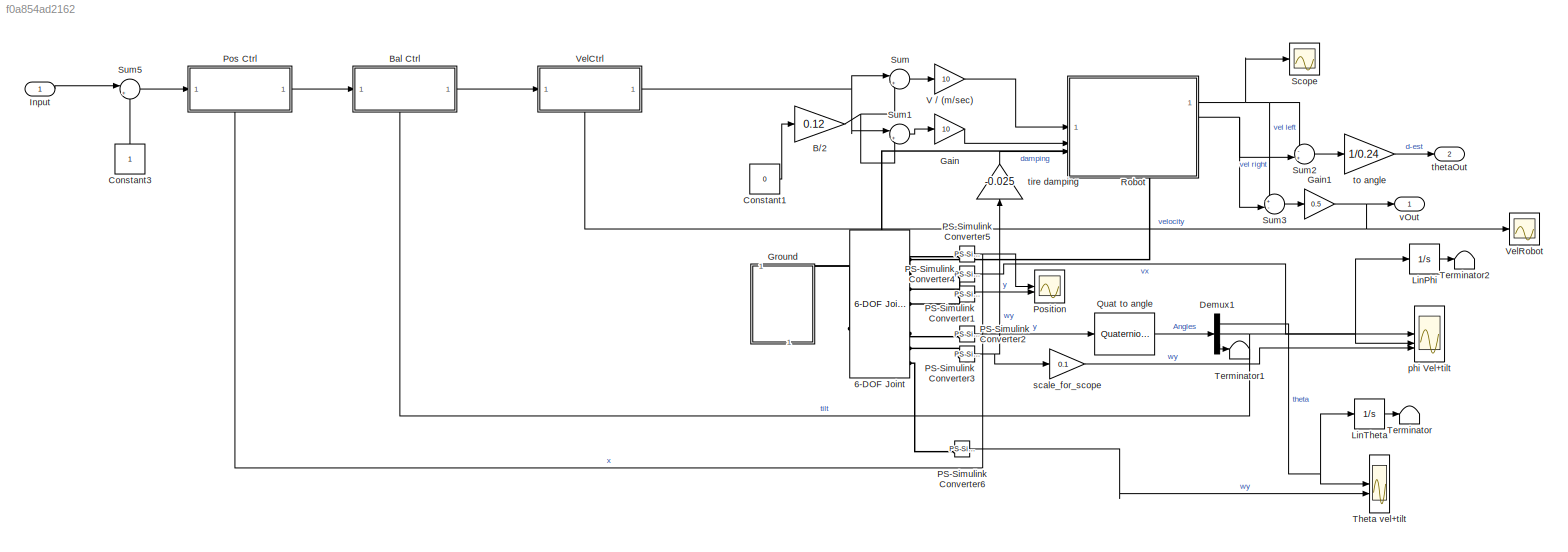
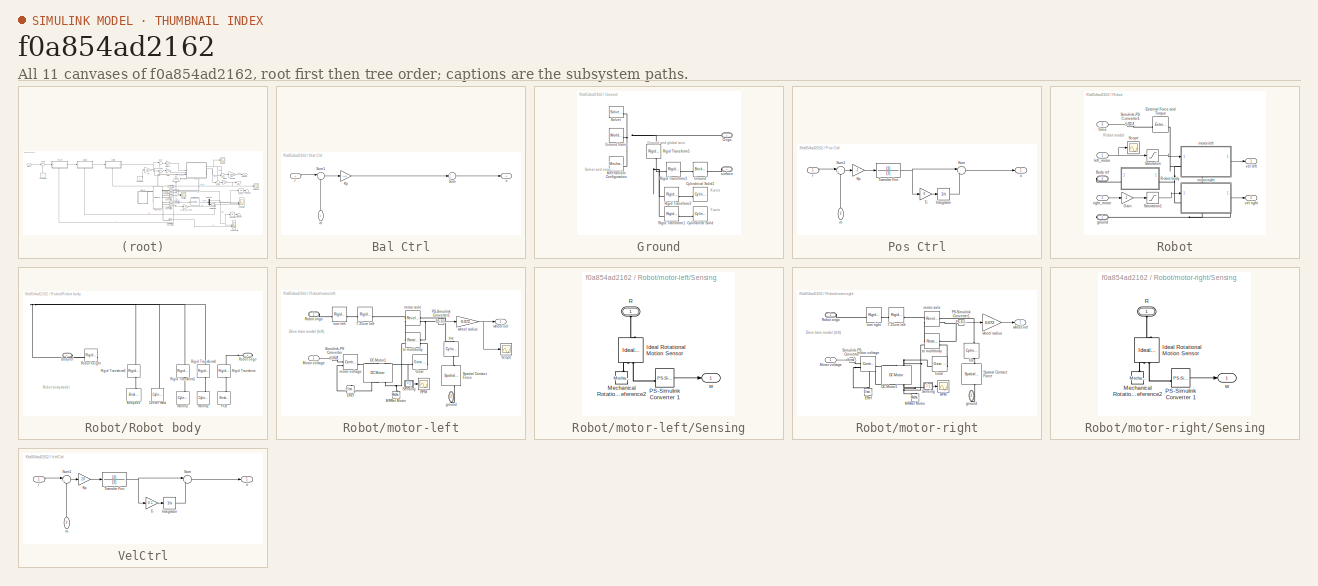
[diagram: thumbnail index - all 11 canvases of the model, root first then tree order]
MODEL slx_f0a854ad2162
KIND model
CONFIG AbsTol = 1e-3
CONFIG EnableMultiTasking = on
CONFIG FixedStep = auto
CONFIG MaxStep = auto
CONFIG MinStep = auto
CONFIG RelTol = 1e-3
CONFIG SampleTimeConstraint = Unconstrained
CONFIG SolverName = VariableStepAuto
CONFIG StartTime = 0.0
CONFIG StopTime = 10
BLOCK [Reference] 6-DOF Joint  REF=sm_lib/Joints/6-DOF Joint
  SourceBlock = sm_lib/Joints/6-DOF Joint
  SourceType = 6-DOF Joint
BLOCK [Gain] B//2
  Gain = 0.12
BLOCK [SubSystem] Bal Ctrl
  NameLocation = top
  PortSchema = {"entries":[{"content":{"sides":[{"content":{"connectorIds":["In1"]},"type":"ConnectorPlacement.EquallySpacedRectSide","uuid":"aa0841fe-a067-4812-ac37-c29326fa3993"},{"content":{"connectorIds":["Out1"],"side":"RIGHT"},"type":"ConnectorPlacement.EquallySpacedRectSide","uuid":"f356dd97-ff78-40a4-8871-b3d98525e6fe"},{"content":{"side":"TOP"},"type":"ConnectorPlacement.EquallySpacedRectSide","uuid":"7...<+371ch>  <repeated x3 — deduplicated; at blocks: Bal Ctrl, Pos Ctrl, VelCtrl>
BLOCK [Gain] Bal Ctrl/Kp
  Gain = -1.5
BLOCK [Sum] Bal Ctrl/Sum
  Inputs = +++
BLOCK [Sum] Bal Ctrl/Sum1
  Inputs = |+-
BLOCK [Inport] Bal Ctrl/m
  NameLocation = right
  Port = 2
BLOCK [Inport] Bal Ctrl/r
BLOCK [Outport] Bal Ctrl/u
BLOCK [Constant] Constant1
  Value = 0
BLOCK [Constant] Constant3
  NameLocation = right
BLOCK [Demux] Demux1
  Outputs = 3
BLOCK [Gain] Gain
  Gain = 10
BLOCK [Gain] Gain1
  Gain = 0.5
BLOCK [SubSystem] Ground
  PortSchema = {"entries":[{"content":{"sides":[{"content":{"connectorIds":["LConn1"]},"type":"ConnectorPlacement.EquallySpacedRectSide","uuid":"7eef4dea-7609-4788-a85a-c84ffa69f19a"},{"content":{"side":"RIGHT"},"type":"ConnectorPlacement.EquallySpacedRectSide","uuid":"e92c1246-1c8b-41a9-8b16-f2f858e0f641"},{"content":{"connectorIds":["LConn2"],"side":"TOP"},"type":"ConnectorPlacement.EquallySpacedRectSide","uui...<+353ch>
BLOCK [Reference] Ground/Cylindrical Solid  REF=sm_lib/Body Elements/Cylindrical Solid
  NameLocation = top
  SourceBlock = sm_lib/Body Elements/Cylindrical Solid
  SourceType = Cylindrical Solid
BLOCK [Reference] Ground/Cylindrical Solid1  REF=sm_lib/Body Elements/Cylindrical Solid
  NameLocation = top
  SourceBlock = sm_lib/Body Elements/Cylindrical Solid
  SourceType = Cylindrical Solid
BLOCK [Reference] Ground/Ground  REF=sm_lib/Body Elements/Brick Solid
  SourceBlock = sm_lib/Body Elements/Brick Solid
  SourceType = Brick Solid
BLOCK [Reference] Ground/Ground frame  REF=sm_lib/Frames and
Transforms/World Frame
  SourceBlock = sm_lib/Frames and\nTransforms/World Frame
  SourceType = World Frame
BLOCK [Reference] Ground/Mechanism Configuration  REF=sm_lib/Utilities/Mechanism
Configuration
  SourceBlock = sm_lib/Utilities/Mechanism\nConfiguration
  SourceType = Mechanism\nConfiguration
BLOCK [PMIOPort] Ground/Origo
  Port = 2
  Side = Left
BLOCK [Reference] Ground/Rigid Transform1  REF=sm_lib/Frames and
Transforms/Rigid
Transform
  SourceBlock = sm_lib/Frames and\nTransforms/Rigid\nTransform
  SourceType = Rigid\nTransform
BLOCK [Reference] Ground/Rigid Transform2  REF=sm_lib/Frames and
Transforms/Rigid
Transform
  SourceBlock = sm_lib/Frames and\nTransforms/Rigid\nTransform
  SourceType = Rigid\nTransform
BLOCK [Reference] Ground/Rigid Transform3  REF=sm_lib/Frames and
Transforms/Rigid
Transform
  SourceBlock = sm_lib/Frames and\nTransforms/Rigid\nTransform
  SourceType = Rigid\nTransform
BLOCK [Reference] Ground/Rigid Transform5  REF=sm_lib/Frames and
Transforms/Rigid
Transform
  NameLocation = left
  SourceBlock = sm_lib/Frames and\nTransforms/Rigid\nTransform
  SourceType = Rigid\nTransform
BLOCK [Reference] Ground/Solver  REF=nesl_utility/Solver
Configuration
  SourceBlock = nesl_utility/Solver\nConfiguration
  SourceType = Solver\nConfiguration
BLOCK [PMIOPort] Ground/surface
  NameLocation = top
  Side = Left
BLOCK [Inport] Input
BLOCK [Integrator] LinPhi
BLOCK [Integrator] LinTheta
BLOCK [Reference] PS-Simulink Converter1  REF=nesl_utility/PS-Simulink
Converter
  SourceBlock = nesl_utility/PS-Simulink\nConverter
  SourceType = PS-Simulink\nConverter
BLOCK [Reference] PS-Simulink Converter2  REF=nesl_utility/PS-Simulink
Converter
  SourceBlock = nesl_utility/PS-Simulink\nConverter
  SourceType = PS-Simulink\nConverter
BLOCK [Reference] PS-Simulink Converter3  REF=nesl_utility/PS-Simulink
Converter
  SourceBlock = nesl_utility/PS-Simulink\nConverter
  SourceType = PS-Simulink\nConverter
BLOCK [Reference] PS-Simulink Converter4  REF=nesl_utility/PS-Simulink
Converter
  SourceBlock = nesl_utility/PS-Simulink\nConverter
  SourceType = PS-Simulink\nConverter
BLOCK [Reference] PS-Simulink Converter5  REF=nesl_utility/PS-Simulink
Converter
  SourceBlock = nesl_utility/PS-Simulink\nConverter
  SourceType = PS-Simulink\nConverter
BLOCK [Reference] PS-Simulink Converter6  REF=nesl_utility/PS-Simulink
Converter
  SourceBlock = nesl_utility/PS-Simulink\nConverter
  SourceType = PS-Simulink\nConverter
BLOCK [SubSystem] Pos Ctrl
  NameLocation = top
BLOCK [Integrator] Pos Ctrl/Integrator
  LimitOutput = on
  LowerSaturationLimit = -8
  UpperSaturationLimit = 8
BLOCK [Gain] Pos Ctrl/Kp
  Gain = -1
BLOCK [Sum] Pos Ctrl/Sum
  Inputs = |++
BLOCK [Sum] Pos Ctrl/Sum1
  Inputs = |+-
BLOCK [Gain] Pos Ctrl/Ti
  Gain = 0
BLOCK [TransferFcn] Pos Ctrl/Transfer Fcn
  Denominator = [1]
BLOCK [Inport] Pos Ctrl/m
  NameLocation = right
  Port = 2
BLOCK [Inport] Pos Ctrl/r
BLOCK [Outport] Pos Ctrl/u
BLOCK [Scope] Position
  Floating = off
  NumInputPorts = 2
  ScopeSpecificationString = Simulink.scopes.TimeScopeBlockCfg('CurrentConfiguration', extmgr.ConfigurationSet(extmgr.Configuration('Core','General UI',true),extmgr.Configuration('Core','Source UI',true),extmgr.Configuration('Sources','WiredSimulink',true,'DataLoggingVariableName','ScopeData1'),extmgr.Configuration('Visuals','Time Domain',true,'SerializedDisplays',{struct('MinYLimReal','-0.01284','MaxYLimReal','0.11559','YLab...<+1480ch>
BLOCK [Reference] Quat to angle  REF=sharedtransform/Quaternions to Rotation Angles
  AttributesFormatString = Rotation Order: %<rotationOrder>
  LibrarySourceBlock = aerolibtransform2/Quaternions to Rotation Angles
  NameLocation = top
  SourceBlock = sharedtransform/Quaternions to Rotation Angles
  SourceType = Quat2Ang
BLOCK [SubSystem] Robot
  NameLocation = top
  PortSchema = {"entries":[{"content":{"sides":[{"content":{"connectorIds":["In1","In2","In3"]},"type":"ConnectorPlacement.EquallySpacedRectSide","uuid":"5a899b80-7bac-4a74-b0d1-ad24c86580e3"},{"content":{"connectorIds":["Out1","Out2"],"side":"RIGHT"},"type":"ConnectorPlacement.EquallySpacedRectSide","uuid":"60cad417-51c5-419f-810a-16084ccef033"},{"content":{"side":"TOP"},"type":"ConnectorPlacement.EquallySpaced...<+402ch>
BLOCK [PMIOPort] Robot/Body ref
  Port = 2
  Side = Right
BLOCK [Reference] Robot/External Force and Torque  REF=sm_lib/Forces and
Torques/External Force
and Torque
  SourceBlock = sm_lib/Forces and\nTorques/External Force\nand Torque
  SourceType = External Force\nand Torque
BLOCK [Gain] Robot/Gain
  Gain = -1
BLOCK [SubSystem] Robot/Robot body
  NameLocation = top
BLOCK [PMIOPort] Robot/Robot body/Body ref
  Side = Left
BLOCK [Reference] Robot/Robot body/Body-box  REF=sm_lib/Body Elements/Brick Solid
  SourceBlock = sm_lib/Body Elements/Brick Solid
  SourceType = Brick Solid
BLOCK [Reference] Robot/Robot body/Center mast   REF=sm_lib/Body Elements/Cylindrical Solid
  SourceBlock = sm_lib/Body Elements/Cylindrical Solid
  SourceType = Cylindrical Solid
BLOCK [Reference] Robot/Robot body/PCB  REF=sm_lib/Body Elements/Brick Solid
  NameLocation = right
  SourceBlock = sm_lib/Body Elements/Brick Solid
  SourceType = Brick Solid
BLOCK [Reference] Robot/Robot body/Rigid Transform  REF=sm_lib/Frames and
Transforms/Rigid
Transform
  NameLocation = left
  SourceBlock = sm_lib/Frames and\nTransforms/Rigid\nTransform
  SourceType = Rigid\nTransform
BLOCK [Reference] Robot/Robot body/Rigid Transform1  REF=sm_lib/Frames and
Transforms/Rigid
Transform
  NameLocation = left
  SourceBlock = sm_lib/Frames and\nTransforms/Rigid\nTransform
  SourceType = Rigid\nTransform
BLOCK [Reference] Robot/Robot body/Rigid Transform2  REF=sm_lib/Frames and
Transforms/Rigid
Transform
  NameLocation = left
  SourceBlock = sm_lib/Frames and\nTransforms/Rigid\nTransform
  SourceType = Rigid\nTransform
BLOCK [Reference] Robot/Robot body/Rigid Transform4  REF=sm_lib/Frames and
Transforms/Rigid
Transform
  NameLocation = left
  SourceBlock = sm_lib/Frames and\nTransforms/Rigid\nTransform
  SourceType = Rigid\nTransform
BLOCK [Reference] Robot/Robot body/Robot height  REF=sm_lib/Frames and
Transforms/Rigid
Transform
  SourceBlock = sm_lib/Frames and\nTransforms/Rigid\nTransform
  SourceType = Rigid\nTransform
BLOCK [PMIOPort] Robot/Robot body/Robot origo
  Port = 2
  Side = Right
BLOCK [Reference] Robot/Robot body/motors1  REF=sm_lib/Body Elements/Cylindrical Solid
  SourceBlock = sm_lib/Body Elements/Cylindrical Solid
  SourceType = Cylindrical Solid
BLOCK [Reference] Robot/Robot body/motors2  REF=sm_lib/Body Elements/Cylindrical Solid
  SourceBlock = sm_lib/Body Elements/Cylindrical Solid
  SourceType = Cylindrical Solid
BLOCK [Saturate] Robot/Saturation
  LowerLimit = -100
  UpperLimit = 100
BLOCK [Saturate] Robot/Saturation1
  LowerLimit = -100
  UpperLimit = 100
BLOCK [Scope] Robot/Scope
  Floating = off
  NumInputPorts = 1
  ScopeSpecificationString = Simulink.scopes.TimeScopeBlockCfg('CurrentConfiguration', extmgr.ConfigurationSet(extmgr.Configuration('Core','General UI',true),extmgr.Configuration('Core','Source UI',true),extmgr.Configuration('Sources','WiredSimulink',true,'DataLoggingVariableName','ScopeData1'),extmgr.Configuration('Visuals','Time Domain',true,'SerializedDisplays',{struct('MinYLimReal','-909.54626','MaxYLimReal','-421.20313',...<+1557ch>
BLOCK [Reference] Robot/Simulink-PS Converter1  REF=nesl_utility/Simulink-PS
Converter
  SourceBlock = nesl_utility/Simulink-PS\nConverter
  SourceType = Simulink-PS\nConverter
BLOCK [Inport] Robot/force
  Port = 3
BLOCK [PMIOPort] Robot/ground
  Side = Right
BLOCK [Inport] Robot/left_motor
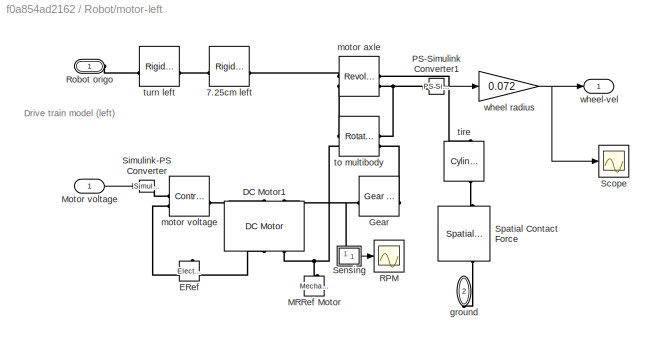
BLOCK [SubSystem] Robot/motor-left
  NameLocation = top
  PortSchema = {"entries":[{"content":{"sides":[{"content":{"connectorIds":["In1","LConn1"]},"type":"ConnectorPlacement.EquallySpacedRectSide","uuid":"bc06ab0c-ec37-423f-ad89-e6de7599ff9c"},{"content":{"connectorIds":["Out1"],"side":"RIGHT"},"type":"ConnectorPlacement.EquallySpacedRectSide","uuid":"2c5e0562-173d-41fd-949f-bc39ba05f0ab"},{"content":{"side":"TOP"},"type":"ConnectorPlacement.EquallySpacedRectSide",...<+383ch>
BLOCK [Reference] Robot/motor-left/7.25cm left  REF=sm_lib/Frames and
Transforms/Rigid
Transform
  SourceBlock = sm_lib/Frames and\nTransforms/Rigid\nTransform
  SourceType = Rigid\nTransform
BLOCK [Reference] Robot/motor-left/DC Motor1  REF=ee_lib/Electromechanical/Brushed Motors/DC Motor
  NameLocation = right
  SourceBlock = ee_lib/Electromechanical/Brushed Motors/DC Motor
  SourceType = DC Motor
BLOCK [Reference] Robot/motor-left/ERef  REF=fl_lib/Electrical/Electrical Elements/Electrical Reference
  NameLocation = right
  SourceBlock = fl_lib/Electrical/Electrical Elements/Electrical Reference
  SourceType = Electrical Reference
BLOCK [Reference] Robot/motor-left/Gear  REF=fl_lib/Mechanical/Mechanisms/Gear Box
  SourceBlock = fl_lib/Mechanical/Mechanisms/Gear Box
  SourceType = Gear Box
BLOCK [Reference] Robot/motor-left/MRRef Motor  REF=fl_lib/Mechanical/Rotational Elements/Mechanical
Rotational Reference
  NameLocation = left
  SourceBlock = fl_lib/Mechanical/Rotational Elements/Mechanical\nRotational Reference
  SourceType = Mechanical\nRotational Reference
BLOCK [Inport] Robot/motor-left/Motor voltage
BLOCK [Reference] Robot/motor-left/PS-Simulink Converter1  REF=nesl_utility/PS-Simulink
Converter
  SourceBlock = nesl_utility/PS-Simulink\nConverter
  SourceType = PS-Simulink\nConverter
BLOCK [Scope] Robot/motor-left/RPM
  Floating = off
  NumInputPorts = 1
  ScopeSpecificationString = Simulink.scopes.TimeScopeBlockCfg('CurrentConfiguration', extmgr.ConfigurationSet(extmgr.Configuration('Core','General UI',true),extmgr.Configuration('Core','Source UI',true),extmgr.Configuration('Sources','WiredSimulink',true,'DataLoggingSaveFormat','StructureWithTime','DataLoggingLimitDataPoints',true,'DataLoggingDecimation','1','DataLoggingVariableName','ScopeData1'),extmgr.Configuration('Visua...<+1766ch>
BLOCK [PMIOPort] Robot/motor-left/Robot origo
  Side = Left
BLOCK [Scope] Robot/motor-left/Scope
  Floating = off
  NumInputPorts = 1
  ScopeSpecificationString = Simulink.scopes.TimeScopeBlockCfg('CurrentConfiguration', extmgr.ConfigurationSet(extmgr.Configuration('Core','General UI',true),extmgr.Configuration('Core','Source UI',true),extmgr.Configuration('Sources','WiredSimulink',true,'DataLoggingVariableName','ScopeData5'),extmgr.Configuration('Visuals','Time Domain',true,'SerializedDisplays',{struct('MinYLimReal','0.26357','MaxYLimReal','0.30381','YLabe...<+1507ch>
BLOCK [SubSystem] Robot/motor-left/Sensing
BLOCK [Reference] Robot/motor-left/Sensing/Ideal Rotational Motion Sensor  REF=fl_lib/Mechanical/Mechanical Sensors/Ideal Rotational
Motion Sensor
  NameLocation = right
  SourceBlock = fl_lib/Mechanical/Mechanical Sensors/Ideal Rotational\nMotion Sensor
  SourceType = Ideal Rotational\nMotion Sensor
BLOCK [Reference] Robot/motor-left/Sensing/Mechanical Rotational Reference2  REF=fl_lib/Mechanical/Rotational Elements/Mechanical
Rotational Reference
  NameLocation = left
  SourceBlock = fl_lib/Mechanical/Rotational Elements/Mechanical\nRotational Reference
  SourceType = Mechanical\nRotational Reference
BLOCK [Reference] Robot/motor-left/Sensing/PS-Simulink Converter 1  REF=nesl_utility/PS-Simulink
Converter
  SourceBlock = nesl_utility/PS-Simulink\nConverter
  SourceType = PS-Simulink\nConverter
BLOCK [PMIOPort] Robot/motor-left/Sensing/R
  NameLocation = right
  Side = Left
BLOCK [Outport] Robot/motor-left/Sensing/w
  VectorParamsAs1DForOutWhenUnconnected = off
BLOCK [Reference] Robot/motor-left/Simulink-PS Converter  REF=nesl_utility/Simulink-PS
Converter
  SourceBlock = nesl_utility/Simulink-PS\nConverter
  SourceType = Simulink-PS\nConverter
BLOCK [Reference] Robot/motor-left/Spatial Contact Force  REF=sm_lib/Forces and
Torques/Spatial
Contact Force
  NameLocation = right
  SourceBlock = sm_lib/Forces and\nTorques/Spatial\nContact Force
  SourceType = Spatial\nContact Force
BLOCK [PMIOPort] Robot/motor-left/ground
  NameLocation = left
  Port = 2
  Side = Right
BLOCK [Reference] Robot/motor-left/motor axle  REF=sm_lib/Joints/Revolute Joint
  NameLocation = top
  SourceBlock = sm_lib/Joints/Revolute Joint
  SourceType = Revolute Joint
BLOCK [Reference] Robot/motor-left/motor voltage  REF=fl_lib/Electrical/Electrical Sources/Controlled Voltage
Source
  NameLocation = top
  SourceBlock = fl_lib/Electrical/Electrical Sources/Controlled Voltage\nSource
  SourceType = Controlled Voltage\nSource
BLOCK [Reference] Robot/motor-left/tire  REF=sm_lib/Body Elements/Cylindrical Solid
  NameLocation = left
  SourceBlock = sm_lib/Body Elements/Cylindrical Solid
  SourceType = Cylindrical Solid
BLOCK [Reference] Robot/motor-left/to multibody  REF=fl_lib/Mechanical/Multibody Interfaces/Rotational Multibody
Interface
  SourceBlock = fl_lib/Mechanical/Multibody Interfaces/Rotational Multibody\nInterface
  SourceType = Rotational Multibody\nInterface
BLOCK [Reference] Robot/motor-left/turn left  REF=sm_lib/Frames and
Transforms/Rigid
Transform
  SourceBlock = sm_lib/Frames and\nTransforms/Rigid\nTransform
  SourceType = Rigid\nTransform
BLOCK [Gain] Robot/motor-left/wheel radius
  Gain = 0.072
  NameLocation = top
BLOCK [Outport] Robot/motor-left/wheel-vel
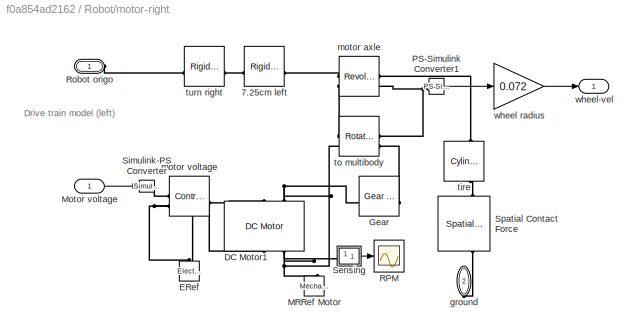
BLOCK [SubSystem] Robot/motor-right
  NameLocation = top
  PortSchema = {"entries":[{"content":{"sides":[{"content":{"connectorIds":["In1","LConn1"]},"type":"ConnectorPlacement.EquallySpacedRectSide","uuid":"bc06ab0c-ec37-423f-ad89-e6de7599ff9c"},{"content":{"connectorIds":["Out1"],"side":"RIGHT"},"type":"ConnectorPlacement.EquallySpacedRectSide","uuid":"2c5e0562-173d-41fd-949f-bc39ba05f0ab"},{"content":{"connectorIds":[],"side":"TOP"},"type":"ConnectorPlacement.Equal...<+401ch>
BLOCK [Reference] Robot/motor-right/7.25cm left  REF=sm_lib/Frames and
Transforms/Rigid
Transform
  SourceBlock = sm_lib/Frames and\nTransforms/Rigid\nTransform
  SourceType = Rigid\nTransform
BLOCK [Reference] Robot/motor-right/DC Motor1  REF=ee_lib/Electromechanical/Brushed Motors/DC Motor
  NameLocation = right
  SourceBlock = ee_lib/Electromechanical/Brushed Motors/DC Motor
  SourceType = DC Motor
BLOCK [Reference] Robot/motor-right/ERef  REF=fl_lib/Electrical/Electrical Elements/Electrical Reference
  NameLocation = right
  SourceBlock = fl_lib/Electrical/Electrical Elements/Electrical Reference
  SourceType = Electrical Reference
BLOCK [Reference] Robot/motor-right/Gear  REF=fl_lib/Mechanical/Mechanisms/Gear Box
  SourceBlock = fl_lib/Mechanical/Mechanisms/Gear Box
  SourceType = Gear Box
BLOCK [Reference] Robot/motor-right/MRRef Motor  REF=fl_lib/Mechanical/Rotational Elements/Mechanical
Rotational Reference
  NameLocation = left
  SourceBlock = fl_lib/Mechanical/Rotational Elements/Mechanical\nRotational Reference
  SourceType = Mechanical\nRotational Reference
BLOCK [Inport] Robot/motor-right/Motor voltage
BLOCK [Reference] Robot/motor-right/PS-Simulink Converter1  REF=nesl_utility/PS-Simulink
Converter
  SourceBlock = nesl_utility/PS-Simulink\nConverter
  SourceType = PS-Simulink\nConverter
BLOCK [Scope] Robot/motor-right/RPM
  Floating = off
  NumInputPorts = 1
  ScopeSpecificationString = Simulink.scopes.TimeScopeBlockCfg('CurrentConfiguration', extmgr.ConfigurationSet(extmgr.Configuration('Core','General UI',true),extmgr.Configuration('Core','Source UI',true),extmgr.Configuration('Sources','WiredSimulink',true,'DataLoggingSaveFormat','StructureWithTime','DataLoggingLimitDataPoints',true,'DataLoggingDecimation','1','DataLoggingVariableName','ScopeData1'),extmgr.Configuration('Visua...<+1807ch>
BLOCK [PMIOPort] Robot/motor-right/Robot origo
  Side = Left
BLOCK [SubSystem] Robot/motor-right/Sensing
BLOCK [Reference] Robot/motor-right/Sensing/Ideal Rotational Motion Sensor  REF=fl_lib/Mechanical/Mechanical Sensors/Ideal Rotational
Motion Sensor
  NameLocation = right
  SourceBlock = fl_lib/Mechanical/Mechanical Sensors/Ideal Rotational\nMotion Sensor
  SourceType = Ideal Rotational\nMotion Sensor
BLOCK [Reference] Robot/motor-right/Sensing/Mechanical Rotational Reference2  REF=fl_lib/Mechanical/Rotational Elements/Mechanical
Rotational Reference
  NameLocation = left
  SourceBlock = fl_lib/Mechanical/Rotational Elements/Mechanical\nRotational Reference
  SourceType = Mechanical\nRotational Reference
BLOCK [Reference] Robot/motor-right/Sensing/PS-Simulink Converter 1  REF=nesl_utility/PS-Simulink
Converter
  SourceBlock = nesl_utility/PS-Simulink\nConverter
  SourceType = PS-Simulink\nConverter
BLOCK [PMIOPort] Robot/motor-right/Sensing/R
  NameLocation = right
  Side = Left
BLOCK [Outport] Robot/motor-right/Sensing/w
  VectorParamsAs1DForOutWhenUnconnected = off
BLOCK [Reference] Robot/motor-right/Simulink-PS Converter  REF=nesl_utility/Simulink-PS
Converter
  SourceBlock = nesl_utility/Simulink-PS\nConverter
  SourceType = Simulink-PS\nConverter
BLOCK [Reference] Robot/motor-right/Spatial Contact Force  REF=sm_lib/Forces and
Torques/Spatial
Contact Force
  NameLocation = right
  SourceBlock = sm_lib/Forces and\nTorques/Spatial\nContact Force
  SourceType = Spatial\nContact Force
BLOCK [PMIOPort] Robot/motor-right/ground
  NameLocation = left
  Port = 2
  Side = Right
BLOCK [Reference] Robot/motor-right/motor axle  REF=sm_lib/Joints/Revolute Joint
  NameLocation = top
  SourceBlock = sm_lib/Joints/Revolute Joint
  SourceType = Revolute Joint
BLOCK [Reference] Robot/motor-right/motor voltage  REF=fl_lib/Electrical/Electrical Sources/Controlled Voltage
Source
  NameLocation = top
  SourceBlock = fl_lib/Electrical/Electrical Sources/Controlled Voltage\nSource
  SourceType = Controlled Voltage\nSource
BLOCK [Reference] Robot/motor-right/tire  REF=sm_lib/Body Elements/Cylindrical Solid
  NameLocation = left
  SourceBlock = sm_lib/Body Elements/Cylindrical Solid
  SourceType = Cylindrical Solid
BLOCK [Reference] Robot/motor-right/to multibody  REF=fl_lib/Mechanical/Multibody Interfaces/Rotational Multibody
Interface
  SourceBlock = fl_lib/Mechanical/Multibody Interfaces/Rotational Multibody\nInterface
  SourceType = Rotational Multibody\nInterface
BLOCK [Reference] Robot/motor-right/turn right  REF=sm_lib/Frames and
Transforms/Rigid
Transform
  SourceBlock = sm_lib/Frames and\nTransforms/Rigid\nTransform
  SourceType = Rigid\nTransform
BLOCK [Gain] Robot/motor-right/wheel radius
  Gain = 0.072
  NameLocation = top
BLOCK [Outport] Robot/motor-right/wheel-vel
BLOCK [Inport] Robot/right_motor
  Port = 2
BLOCK [Outport] Robot/vel left
BLOCK [Outport] Robot/vel right
  Port = 2
BLOCK [Scope] Scope
  Floating = off
  NumInputPorts = 1
  ScopeSpecificationString = Simulink.scopes.TimeScopeBlockCfg('CurrentConfiguration', extmgr.ConfigurationSet(extmgr.Configuration('Core','General UI',true),extmgr.Configuration('Core','Source UI',true),extmgr.Configuration('Sources','WiredSimulink',true,'DataLoggingVariableName','ScopeData2'),extmgr.Configuration('Visuals','Time Domain',true,'SerializedDisplays',{struct('MinYLimReal','-0.10997','MaxYLimReal','0.98969','YLab...<+1500ch>
BLOCK [Sum] Sum
  Inputs = |+-
BLOCK [Sum] Sum1
  Inputs = |++
BLOCK [Sum] Sum2
  Inputs = -+|
BLOCK [Sum] Sum3
  Inputs = +-|
BLOCK [Sum] Sum5
  Inputs = |++
BLOCK [Terminator] Terminator
BLOCK [Terminator] Terminator1
BLOCK [Terminator] Terminator2
BLOCK [Scope] Theta vel+tilt
  Floating = off
  NumInputPorts = 2
  ScopeSpecificationString = Simulink.scopes.TimeScopeBlockCfg('CurrentConfiguration', extmgr.ConfigurationSet(extmgr.Configuration('Core','General UI',true),extmgr.Configuration('Core','Source UI',true),extmgr.Configuration('Sources','WiredSimulink',true,'DataLoggingVariableName','ScopeData1'),extmgr.Configuration('Visuals','Time Domain',true,'SerializedDisplays',{struct('MinYLimReal','-0.09639','MaxYLimReal','0.56249','YLab...<+1512ch>
BLOCK [Gain] V // (m//sec)
  Gain = 10
BLOCK [SubSystem] VelCtrl
  NameLocation = top
BLOCK [Integrator] VelCtrl/Integrator
  LimitOutput = on
  LowerSaturationLimit = -8
  UpperSaturationLimit = 8
BLOCK [Gain] VelCtrl/Kp
  Gain = 20
BLOCK [Sum] VelCtrl/Sum
  Inputs = |++
BLOCK [Sum] VelCtrl/Sum1
  Inputs = |+-
BLOCK [Gain] VelCtrl/Ti
  Gain = 0.1
BLOCK [TransferFcn] VelCtrl/Transfer Fcn
  Denominator = [1]
BLOCK [Inport] VelCtrl/m
  NameLocation = right
  Port = 2
BLOCK [Inport] VelCtrl/r
BLOCK [Outport] VelCtrl/u
BLOCK [Scope] VelRobot
  Floating = off
  NumInputPorts = 1
  ScopeSpecificationString = Simulink.scopes.TimeScopeBlockCfg('CurrentConfiguration', extmgr.ConfigurationSet(extmgr.Configuration('Core','General UI',true),extmgr.Configuration('Core','Source UI',true),extmgr.Configuration('Sources','WiredSimulink',true,'DataLoggingVariableName','ScopeData1'),extmgr.Configuration('Visuals','Time Domain',true,'SerializedDisplays',{struct('MinYLimReal','-0.10993','MaxYLimReal','0.98937','YLab...<+1529ch>
BLOCK [Scope] phi Vel+tilt
  Floating = off
  NumInputPorts = 3
  ScopeSpecificationString = Simulink.scopes.TimeScopeBlockCfg('CurrentConfiguration', extmgr.ConfigurationSet(extmgr.Configuration('Core','General UI',true),extmgr.Configuration('Core','Source UI',true),extmgr.Configuration('Sources','WiredSimulink',true,'DataLoggingVariableName','ScopeData2'),extmgr.Configuration('Visuals','Time Domain',true,'SerializedDisplays',{struct('MinYLimReal','-0.14595','MaxYLimReal','0.13148','YLab...<+1531ch>
BLOCK [Gain] scale_for_scope
  Gain = 0.1
BLOCK [Outport] thetaOut
  Port = 2
BLOCK [Gain] tire damping
  Gain = -0.025
  NameLocation = left
BLOCK [Gain] to angle
  Gain = 1/0.24
  NameLocation = top
BLOCK [Outport] vOut
ANNOTATION Ground: Ground and global axis
ANNOTATION Ground: Solver and origo
ANNOTATION Ground: X-axis
ANNOTATION Ground: Y-axis
ANNOTATION Robot: Robot model
ANNOTATION Robot/Robot body: Robot body model
ANNOTATION Robot/motor-left: Drive train model (left)
ANNOTATION Robot/motor-right: Drive train model (left)
NET B//2:1 -> Sum1:2, Sum:2
LINE Bal Ctrl/Kp:1 -> Bal Ctrl/Sum:2
LINE Bal Ctrl/Sum1:1 -> Bal Ctrl/Kp:1
LINE Bal Ctrl/Sum:1 -> Bal Ctrl/u:1
LINE Bal Ctrl/m:1 -> Bal Ctrl/Sum1:2
LINE Bal Ctrl/r:1 -> Bal Ctrl/Sum1:1
LINE Bal Ctrl:1 -> VelCtrl:1
LINE Constant1:1 -> B//2:1
LINE Constant3:1 -> Sum5:2
NET Demux1:1 -> LinTheta:1, Theta vel+tilt:1
NET Demux1:2 -> Bal Ctrl:2, LinPhi:1, phi Vel+tilt:2
LINE Demux1:3 -> Terminator1:1
NET Gain1:1 -> VelCtrl:2, VelRobot:1, vOut:1
LINE Gain:1 -> Robot:2
LINE Input:1 -> Sum5:1
LINE LinPhi:1 -> Terminator2:1
LINE LinTheta:1 -> Terminator:1
LINE PS-Simulink Converter1:1 -> Position:2
LINE PS-Simulink Converter2:1 -> Quat to angle:1
NET PS-Simulink Converter3:1 -> scale_for_scope:1, tire damping:1
LINE PS-Simulink Converter4:1 -> phi Vel+tilt:1
NET PS-Simulink Converter5:1 -> Pos Ctrl:2, Position:1
LINE PS-Simulink Converter6:1 -> Theta vel+tilt:2
LINE Pos Ctrl/Integrator:1 -> Pos Ctrl/Sum:2
LINE Pos Ctrl/Kp:1 -> Pos Ctrl/Transfer Fcn:1
LINE Pos Ctrl/Sum1:1 -> Pos Ctrl/Kp:1
LINE Pos Ctrl/Sum:1 -> Pos Ctrl/u:1
LINE Pos Ctrl/Ti:1 -> Pos Ctrl/Integrator:1
NET Pos Ctrl/Transfer Fcn:1 -> Pos Ctrl/Sum:1, Pos Ctrl/Ti:1
LINE Pos Ctrl/m:1 -> Pos Ctrl/Sum1:2
LINE Pos Ctrl/r:1 -> Pos Ctrl/Sum1:1
LINE Pos Ctrl:1 -> Bal Ctrl:1
LINE Quat to angle:1 -> Demux1:1
LINE Robot/Gain:1 -> Robot/Saturation1:1
LINE Robot/Saturation1:1 -> Robot/motor-right:1
LINE Robot/Saturation:1 -> Robot/motor-left:1
LINE Robot/force:1 -> Robot/Simulink-PS Converter1:1
NET Robot/left_motor:1 -> Robot/Saturation:1, Robot/Scope:1
LINE Robot/motor-left/Motor voltage:1 -> Robot/motor-left/Simulink-PS Converter:1
LINE Robot/motor-left/PS-Simulink Converter1:1 -> Robot/motor-left/wheel radius:1
LINE Robot/motor-left/Sensing/PS-Simulink Converter 1:1 -> Robot/motor-left/Sensing/w:1
LINE Robot/motor-left/Sensing:1 -> Robot/motor-left/RPM:1
NET Robot/motor-left/wheel radius:1 -> Robot/motor-left/Scope:1, Robot/motor-left/wheel-vel:1
LINE Robot/motor-left:1 -> Robot/vel left:1
LINE Robot/motor-right/Motor voltage:1 -> Robot/motor-right/Simulink-PS Converter:1
LINE Robot/motor-right/PS-Simulink Converter1:1 -> Robot/motor-right/wheel radius:1
LINE Robot/motor-right/Sensing/PS-Simulink Converter 1:1 -> Robot/motor-right/Sensing/w:1
LINE Robot/motor-right/Sensing:1 -> Robot/motor-right/RPM:1
LINE Robot/motor-right/wheel radius:1 -> Robot/motor-right/wheel-vel:1
LINE Robot/motor-right:1 -> Robot/vel right:1
LINE Robot/right_motor:1 -> Robot/Gain:1
NET Robot:1 -> Scope:1, Sum2:1, Sum3:1
NET Robot:2 -> Sum2:2, Sum3:2
LINE Sum1:1 -> Gain:1
LINE Sum2:1 -> to angle:1
LINE Sum3:1 -> Gain1:1
LINE Sum5:1 -> Pos Ctrl:1
LINE Sum:1 -> V // (m//sec):1
LINE V // (m//sec):1 -> Robot:1
LINE VelCtrl/Integrator:1 -> VelCtrl/Sum:2
LINE VelCtrl/Kp:1 -> VelCtrl/Transfer Fcn:1
LINE VelCtrl/Sum1:1 -> VelCtrl/Kp:1
LINE VelCtrl/Sum:1 -> VelCtrl/u:1
LINE VelCtrl/Ti:1 -> VelCtrl/Integrator:1
NET VelCtrl/Transfer Fcn:1 -> VelCtrl/Sum:1, VelCtrl/Ti:1
LINE VelCtrl/m:1 -> VelCtrl/Sum1:2
LINE VelCtrl/r:1 -> VelCtrl/Sum1:1
NET VelCtrl:1 -> Sum1:1, Sum:1
LINE scale_for_scope:1 -> phi Vel+tilt:3
LINE tire damping:1 -> Robot:3
LINE to angle:1 -> thetaOut:1
PLINE 6-DOF Joint:LConn1 -- Ground:LConn2
PLINE 6-DOF Joint:RConn1 -- Robot:RConn2
PLINE 6-DOF Joint:RConn2 -- PS-Simulink Converter5:LConn1
PLINE 6-DOF Joint:RConn3 -- PS-Simulink Converter4:LConn1
PLINE 6-DOF Joint:RConn4 -- PS-Simulink Converter1:LConn1
PLINE 6-DOF Joint:RConn6 -- PS-Simulink Converter2:LConn1
PLINE 6-DOF Joint:RConn7 -- PS-Simulink Converter3:LConn1
PLINE 6-DOF Joint:RConn8 -- PS-Simulink Converter6:LConn1
PLINE Ground/Cylindrical Solid1:RConn1 -- Ground/Rigid Transform2:RConn1
PLINE Ground/Cylindrical Solid:RConn1 -- Ground/Rigid Transform1:RConn1
PNET net1: Ground/Ground frame:RConn1 -- Ground/Mechanism Configuration:RConn1 -- Ground/Origo:RConn1 -- Ground/Rigid Transform5:LConn1 -- Ground/Solver:RConn1
PLINE Ground/Ground:LConn1 -- Ground/surface:RConn1
PLINE Ground/Ground:RConn1 -- Ground/Rigid Transform3:RConn1
PNET net2: Ground/Rigid Transform1:LConn1 -- Ground/Rigid Transform2:LConn1 -- Ground/Rigid Transform3:LConn1 -- Ground/Rigid Transform5:RConn1
PLINE Ground:LConn1 -- Robot:RConn1
PLINE Robot/Body ref:RConn1 -- Robot/Robot body:LConn1
PLINE Robot/External Force and Torque:LConn1 -- Robot/Simulink-PS Converter1:RConn1
PNET net3: Robot/External Force and Torque:RConn1 -- Robot/Robot body:RConn1 -- Robot/motor-left:LConn1 -- Robot/motor-right:LConn1
PLINE Robot/Robot body/Body ref:RConn1 -- Robot/Robot body/Robot height:LConn1
PLINE Robot/Robot body/Body-box:RConn1 -- Robot/Robot body/Rigid Transform2:RConn1
PNET net4: Robot/Robot body/Center mast :RConn1 -- Robot/Robot body/Rigid Transform1:LConn1 -- Robot/Robot body/Rigid Transform2:LConn1 -- Robot/Robot body/Rigid Transform4:LConn1 -- Robot/Robot body/Rigid Transform:LConn1 -- Robot/Robot body/Robot height:RConn1 -- Robot/Robot body/Robot origo:RConn1
PLINE Robot/Robot body/PCB:RConn1 -- Robot/Robot body/Rigid Transform:RConn1
PLINE Robot/Robot body/Rigid Transform1:RConn1 -- Robot/Robot body/motors1:RConn1
PLINE Robot/Robot body/Rigid Transform4:RConn1 -- Robot/Robot body/motors2:RConn1
PNET net5: Robot/ground:RConn1 -- Robot/motor-left:RConn1 -- Robot/motor-right:RConn1
PLINE Robot/motor-left/7.25cm left:LConn1 -- Robot/motor-left/turn left:RConn1
PLINE Robot/motor-left/7.25cm left:RConn1 -- Robot/motor-left/motor axle:LConn1
PLINE Robot/motor-left/DC Motor1:LConn1 -- Robot/motor-left/motor voltage:LConn1
PNET net6: Robot/motor-left/DC Motor1:LConn2 -- Robot/motor-left/Gear:LConn1 -- Robot/motor-left/Sensing:LConn1
PNET net7: Robot/motor-left/DC Motor1:RConn1 -- Robot/motor-left/ERef:LConn1 -- Robot/motor-left/motor voltage:RConn2
PNET net8: Robot/motor-left/DC Motor1:RConn2 -- Robot/motor-left/MRRef Motor:LConn1 -- Robot/motor-left/to multibody:LConn2
PLINE Robot/motor-left/Gear:RConn1 -- Robot/motor-left/to multibody:RConn2
PNET net9: Robot/motor-left/PS-Simulink Converter1:LConn1 -- Robot/motor-left/motor axle:RConn2 -- Robot/motor-left/to multibody:RConn1
PLINE Robot/motor-left/Robot origo:RConn1 -- Robot/motor-left/turn left:LConn1
PLINE Robot/motor-left/Sensing/Ideal Rotational Motion Sensor:LConn1 -- Robot/motor-left/Sensing/R:RConn1
PLINE Robot/motor-left/Sensing/Ideal Rotational Motion Sensor:RConn1 -- Robot/motor-left/Sensing/Mechanical Rotational Reference2:LConn1
PLINE Robot/motor-left/Sensing/Ideal Rotational Motion Sensor:RConn2 -- Robot/motor-left/Sensing/PS-Simulink Converter 1:LConn1
PLINE Robot/motor-left/Simulink-PS Converter:RConn1 -- Robot/motor-left/motor voltage:RConn1
PLINE Robot/motor-left/Spatial Contact Force:LConn1 -- Robot/motor-left/ground:RConn1
PLINE Robot/motor-left/Spatial Contact Force:RConn1 -- Robot/motor-left/tire:LConn1
PLINE Robot/motor-left/motor axle:LConn2 -- Robot/motor-left/to multibody:LConn1
PLINE Robot/motor-left/motor axle:RConn1 -- Robot/motor-left/tire:RConn1
PLINE Robot/motor-right/7.25cm left:LConn1 -- Robot/motor-right/turn right:RConn1
PLINE Robot/motor-right/7.25cm left:RConn1 -- Robot/motor-right/motor axle:LConn1
PLINE Robot/motor-right/DC Motor1:LConn1 -- Robot/motor-right/motor voltage:LConn1
PNET net10: Robot/motor-right/DC Motor1:LConn2 -- Robot/motor-right/Gear:LConn1 -- Robot/motor-right/Sensing:LConn1
PNET net11: Robot/motor-right/DC Motor1:RConn1 -- Robot/motor-right/ERef:LConn1 -- Robot/motor-right/motor voltage:RConn2
PNET net12: Robot/motor-right/DC Motor1:RConn2 -- Robot/motor-right/MRRef Motor:LConn1 -- Robot/motor-right/to multibody:LConn2
PLINE Robot/motor-right/Gear:RConn1 -- Robot/motor-right/to multibody:RConn2
PNET net13: Robot/motor-right/PS-Simulink Converter1:LConn1 -- Robot/motor-right/motor axle:RConn2 -- Robot/motor-right/to multibody:RConn1
PLINE Robot/motor-right/Robot origo:RConn1 -- Robot/motor-right/turn right:LConn1
PLINE Robot/motor-right/Sensing/Ideal Rotational Motion Sensor:LConn1 -- Robot/motor-right/Sensing/R:RConn1
PLINE Robot/motor-right/Sensing/Ideal Rotational Motion Sensor:RConn1 -- Robot/motor-right/Sensing/Mechanical Rotational Reference2:LConn1
PLINE Robot/motor-right/Sensing/Ideal Rotational Motion Sensor:RConn2 -- Robot/motor-right/Sensing/PS-Simulink Converter 1:LConn1
PLINE Robot/motor-right/Simulink-PS Converter:RConn1 -- Robot/motor-right/motor voltage:RConn1
PLINE Robot/motor-right/Spatial Contact Force:LConn1 -- Robot/motor-right/ground:RConn1
PLINE Robot/motor-right/Spatial Contact Force:RConn1 -- Robot/motor-right/tire:LConn1
PLINE Robot/motor-right/motor axle:LConn2 -- Robot/motor-right/to multibody:LConn1
PLINE Robot/motor-right/motor axle:RConn1 -- Robot/motor-right/tire:RConn1
note: NET lines group one-source signal fan-out (src -> all destinations, sorted); 1:1 wires keep LINE; PNET lines group multi-terminal physical nets as a canonical sorted terminal list (undirected conserving connections); 2-terminal nets keep the pairwise PLINE form
